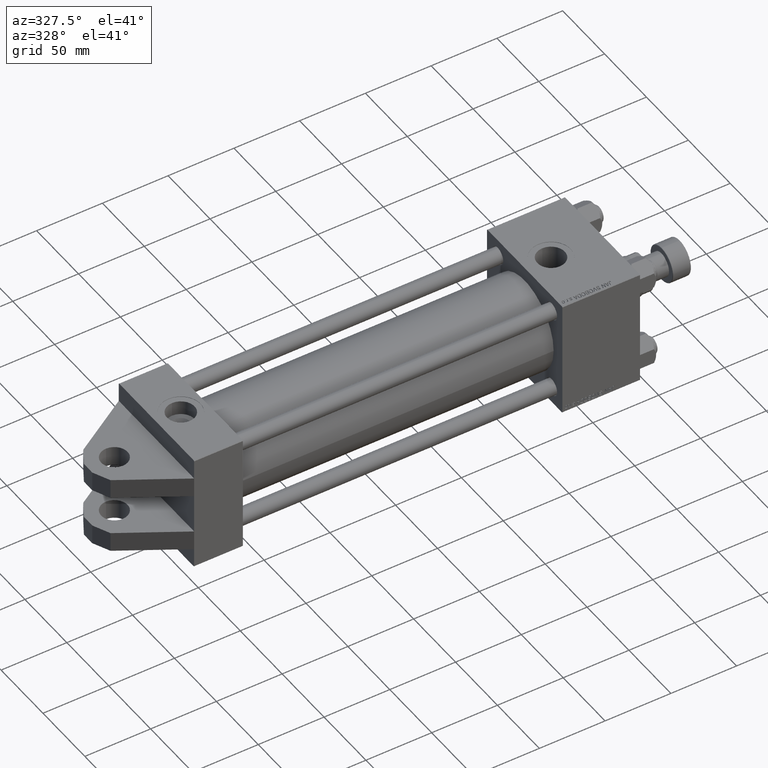
[diagram: clean part render]
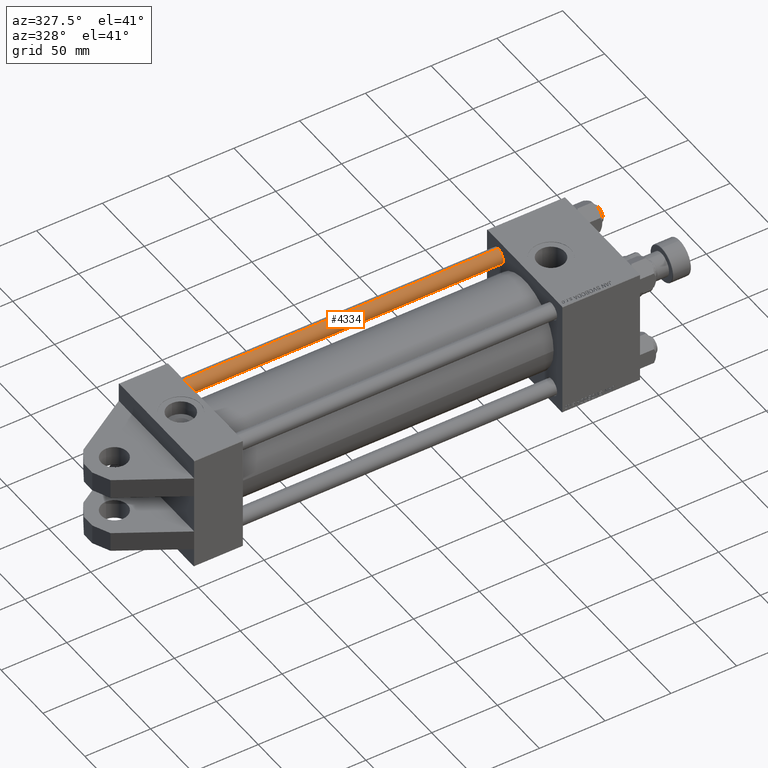
[diagram: same view with one face highlighted and labeled with its STEP entity id]
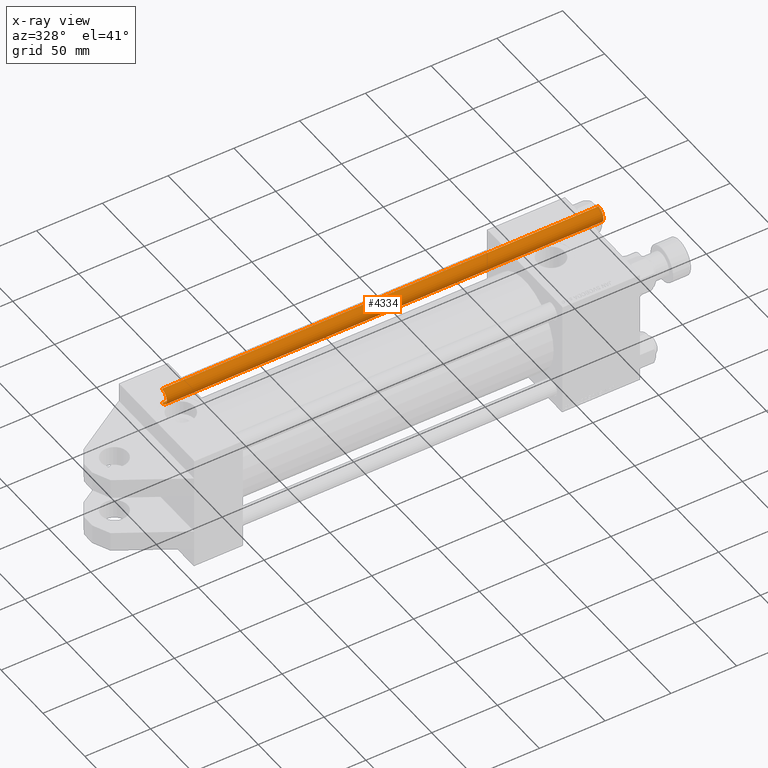
[diagram: x-ray of the same camera — body ghosted, the highlighted face saturated]
A machine part, auxiliary view. The second image highlights one B-rep face of the part: STEP entity #4334.
The next image is the same camera in x-ray: the body ghosted, the highlighted face saturated — about 0% of this face is hidden behind the body in this view.
In plain terms, the highlighted cylindrical surface (edge-blend (fillet) strip) has radius 6 mm, axis along (-1, 0, -0).
Its self-contained STEP definition (entity closure, byte-faithful):
#3111 = VECTOR ( 'NONE', #34069, 1000.000000000000000 ) ;
#4334 = ADVANCED_FACE ( 'NONE', ( #24182 ), #44771, .T. ) ;
#5288 = CARTESIAN_POINT ( 'NONE',  ( -6.000000000000000888, 0.000000000000000000, 333.0000000000000000 ) ) ;
#6538 = DIRECTION ( 'NONE',  ( 0.000000000000000000, 0.000000000000000000, -1.000000000000000000 ) ) ;
#7193 = EDGE_CURVE ( 'NONE', #16816, #40363, #39895, .T. ) ;
#9880 = VERTEX_POINT ( 'NONE', #36287 ) ;
#11097 = EDGE_LOOP ( 'NONE', ( #24999, #51187, #41312, #41679 ) ) ;
#16764 = DIRECTION ( 'NONE',  ( -0.000000000000000000, -0.000000000000000000, -1.000000000000000000 ) ) ;
#16816 = VERTEX_POINT ( 'NONE', #20827 ) ;
#20115 = EDGE_CURVE ( 'NONE', #16816, #45496, #41224, .T. ) ;
#20827 = CARTESIAN_POINT ( 'NONE',  ( 6.000000000000000888, 7.347880794884120722E-16, 332.5000000000001137 ) ) ;
#21905 = CARTESIAN_POINT ( 'NONE',  ( 6.000000000000000888, 7.347880794884120722E-16, 333.0000000000000000 ) ) ;
#22677 = DIRECTION ( 'NONE',  ( 1.000000000000000000, 0.000000000000000000, 0.000000000000000000 ) ) ;
#24182 = FACE_OUTER_BOUND ( 'NONE', #11097, .T. ) ;
#24906 = LINE ( 'NONE', #5288, #42152 ) ;
#24999 = ORIENTED_EDGE ( 'NONE', *, *, #20115, .F. ) ;
#27368 = EDGE_CURVE ( 'NONE', #40363, #9880, #24906, .T. ) ;
#27681 = CARTESIAN_POINT ( 'NONE',  ( 0.000000000000000000, 0.000000000000000000, 332.5000000000001137 ) ) ;
#28094 = AXIS2_PLACEMENT_3D ( 'NONE', #27681, #6538, #22677 ) ;
#28845 = DIRECTION ( 'NONE',  ( -0.000000000000000000, -0.000000000000000000, -1.000000000000000000 ) ) ;
#32624 = AXIS2_PLACEMENT_3D ( 'NONE', #39487, #35015, #51111 ) ;
#32897 = DIRECTION ( 'NONE',  ( -1.000000000000000000, 0.000000000000000000, 0.000000000000000000 ) ) ;
#34069 = DIRECTION ( 'NONE',  ( -0.000000000000000000, -0.000000000000000000, -1.000000000000000000 ) ) ;
#35015 = DIRECTION ( 'NONE',  ( -0.000000000000000000, -0.000000000000000000, 1.000000000000000000 ) ) ;
#36186 = CARTESIAN_POINT ( 'NONE',  ( -6.000000000000000888, 0.000000000000000000, 332.5000000000001137 ) ) ;
#36287 = CARTESIAN_POINT ( 'NONE',  ( -6.000000000000000888, 0.000000000000000000, 0.5000000000000004441 ) ) ;
#39487 = CARTESIAN_POINT ( 'NONE',  ( 0.000000000000000000, 0.000000000000000000, 0.5000000000000004441 ) ) ;
#39895 = CIRCLE ( 'NONE', #28094, 6.000000000000000888 ) ;
#40363 = VERTEX_POINT ( 'NONE', #36186 ) ;
#40976 = CARTESIAN_POINT ( 'NONE',  ( 6.000000000000000888, 7.347880794884120722E-16, 0.5000000000000004441 ) ) ;
#41224 = LINE ( 'NONE', #21905, #3111 ) ;
#41312 = ORIENTED_EDGE ( 'NONE', *, *, #27368, .T. ) ;
#41645 = AXIS2_PLACEMENT_3D ( 'NONE', #48468, #16764, #32897 ) ;
#41679 = ORIENTED_EDGE ( 'NONE', *, *, #48120, .T. ) ;
#42152 = VECTOR ( 'NONE', #28845, 1000.000000000000000 ) ;
#44538 = CIRCLE ( 'NONE', #32624, 6.000000000000000888 ) ;
#44771 = CYLINDRICAL_SURFACE ( 'NONE', #41645, 6.000000000000000888 ) ;
#45496 = VERTEX_POINT ( 'NONE', #40976 ) ;
#48120 = EDGE_CURVE ( 'NONE', #9880, #45496, #44538, .T. ) ;
#48468 = CARTESIAN_POINT ( 'NONE',  ( 0.000000000000000000, 0.000000000000000000, 333.0000000000000000 ) ) ;
#51111 = DIRECTION ( 'NONE',  ( 1.000000000000000000, 0.000000000000000000, 0.000000000000000000 ) ) ;
#51187 = ORIENTED_EDGE ( 'NONE', *, *, #7193, .T. ) ;